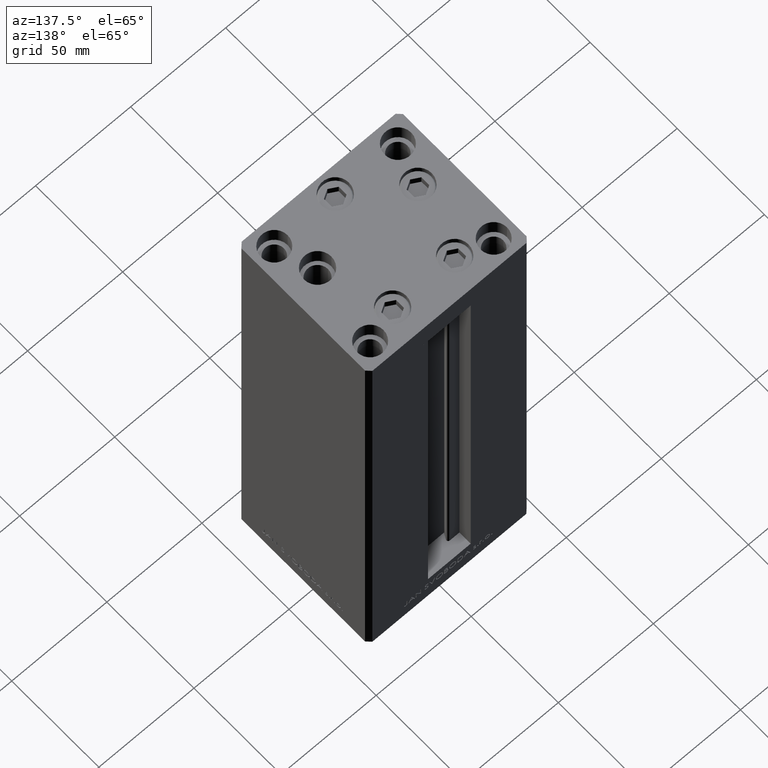
[diagram: clean part render]
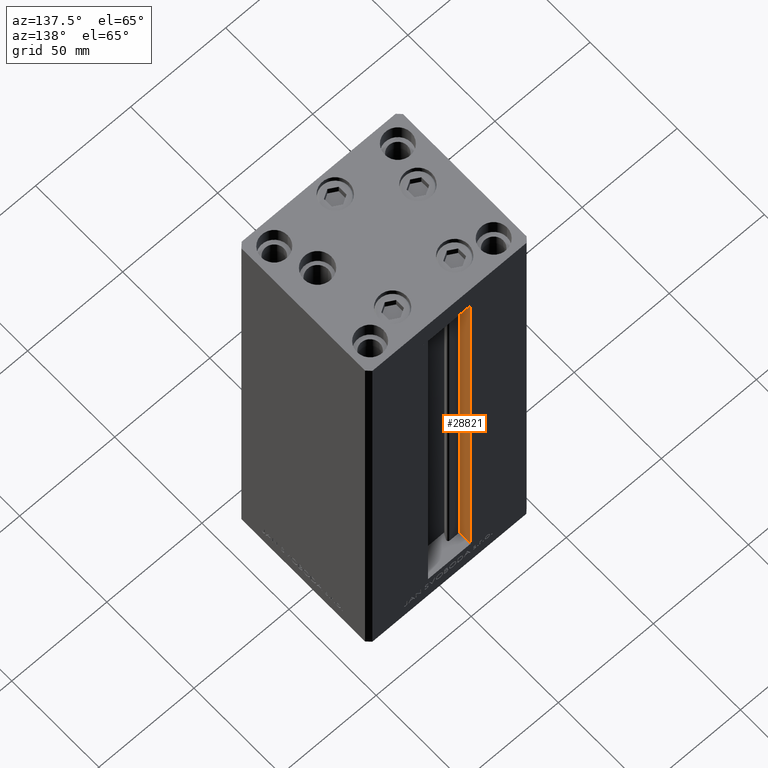
[diagram: same view with one face highlighted and labeled with its STEP entity id]
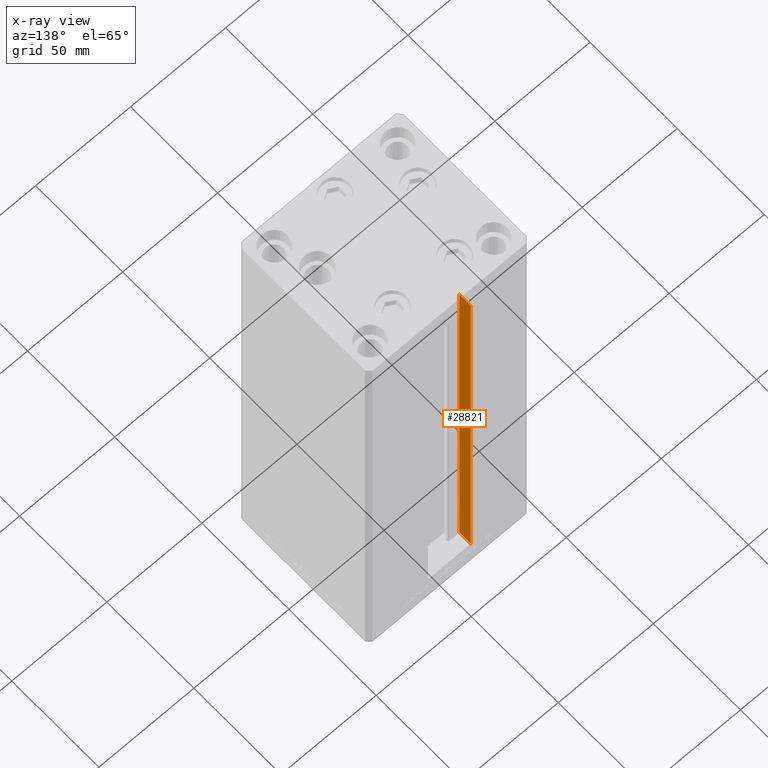
[diagram: x-ray of the same camera — body ghosted, the highlighted face saturated]
A machine part, auxiliary view. The second image highlights one B-rep face of the part: STEP entity #28821.
The next image is the same camera in x-ray: the body ghosted, the highlighted face saturated — about 0% of this face is hidden behind the body in this view.
In plain terms, the highlighted planar face has unit normal (-1, 0, 0).
Its self-contained STEP definition (entity closure, byte-faithful):
#398 = ORIENTED_EDGE ( 'NONE', *, *, #5012, .T. ) ;
#799 = DIRECTION ( 'NONE',  ( 0.000000000000000000, 1.000000000000000000, 0.000000000000000000 ) ) ;
#2470 = ORIENTED_EDGE ( 'NONE', *, *, #9705, .F. ) ;
#3076 = VECTOR ( 'NONE', #22975, 1000.000000000000000 ) ;
#5012 = EDGE_CURVE ( 'NONE', #39286, #26337, #22696, .T. ) ;
#6856 = DIRECTION ( 'NONE',  ( -0.000000000000000000, -0.000000000000000000, 1.000000000000000000 ) ) ;
#8190 = EDGE_LOOP ( 'NONE', ( #22560, #30311, #398, #2470 ) ) ;
#9705 = EDGE_CURVE ( 'NONE', #31818, #26337, #23449, .T. ) ;
#10255 = CARTESIAN_POINT ( 'NONE',  ( -11.25000000000000000, 30.99999999999999289, 0.000000000000000000 ) ) ;
#10636 = CARTESIAN_POINT ( 'NONE',  ( -11.25000000000000000, 37.50000000000000000, 0.000000000000000000 ) ) ;
#10811 = DIRECTION ( 'NONE',  ( -0.000000000000000000, -0.000000000000000000, 1.000000000000000000 ) ) ;
#13028 = DIRECTION ( 'NONE',  ( 0.000000000000000000, 0.000000000000000000, 1.000000000000000000 ) ) ;
#17309 = VERTEX_POINT ( 'NONE', #10255 ) ;
#17527 = FACE_OUTER_BOUND ( 'NONE', #8190, .T. ) ;
#18777 = EDGE_CURVE ( 'NONE', #17309, #31818, #45748, .T. ) ;
#18825 = VECTOR ( 'NONE', #799, 1000.000000000000000 ) ;
#18960 = CARTESIAN_POINT ( 'NONE',  ( -11.25000000000000000, 30.99999999999999289, 0.000000000000000000 ) ) ;
#22474 = CARTESIAN_POINT ( 'NONE',  ( -11.25000000000000000, 37.50000000000000000, 218.5000000000000000 ) ) ;
#22560 = ORIENTED_EDGE ( 'NONE', *, *, #18777, .F. ) ;
#22696 = LINE ( 'NONE', #10636, #31517 ) ;
#22975 = DIRECTION ( 'NONE',  ( -0.000000000000000000, -1.000000000000000000, -0.000000000000000000 ) ) ;
#23449 = LINE ( 'NONE', #31975, #18825 ) ;
#23710 = LINE ( 'NONE', #18960, #3076 ) ;
#24578 = VECTOR ( 'NONE', #10811, 1000.000000000000000 ) ;
#24582 = CARTESIAN_POINT ( 'NONE',  ( -11.25000000000000000, 37.50000000000000000, 0.000000000000000000 ) ) ;
#26337 = VERTEX_POINT ( 'NONE', #22474 ) ;
#28821 = ADVANCED_FACE ( 'NONE', ( #17527 ), #28840, .F. ) ;
#28840 = PLANE ( 'NONE',  #31170 ) ;
#30311 = ORIENTED_EDGE ( 'NONE', *, *, #45864, .F. ) ;
#31170 = AXIS2_PLACEMENT_3D ( 'NONE', #32135, #48186, #13028 ) ;
#31517 = VECTOR ( 'NONE', #6856, 1000.000000000000000 ) ;
#31818 = VERTEX_POINT ( 'NONE', #34025 ) ;
#31975 = CARTESIAN_POINT ( 'NONE',  ( -11.25000000000000000, 0.000000000000000000, 218.5000000000000000 ) ) ;
#32135 = CARTESIAN_POINT ( 'NONE',  ( -11.25000000000000000, 30.99999999999999289, 0.000000000000000000 ) ) ;
#34025 = CARTESIAN_POINT ( 'NONE',  ( -11.25000000000000000, 30.99999999999999289, 218.5000000000000000 ) ) ;
#39286 = VERTEX_POINT ( 'NONE', #24582 ) ;
#45260 = CARTESIAN_POINT ( 'NONE',  ( -11.25000000000000000, 30.99999999999999289, 0.000000000000000000 ) ) ;
#45748 = LINE ( 'NONE', #45260, #24578 ) ;
#45864 = EDGE_CURVE ( 'NONE', #39286, #17309, #23710, .T. ) ;
#48186 = DIRECTION ( 'NONE',  ( -1.000000000000000000, 0.000000000000000000, 0.000000000000000000 ) ) ;